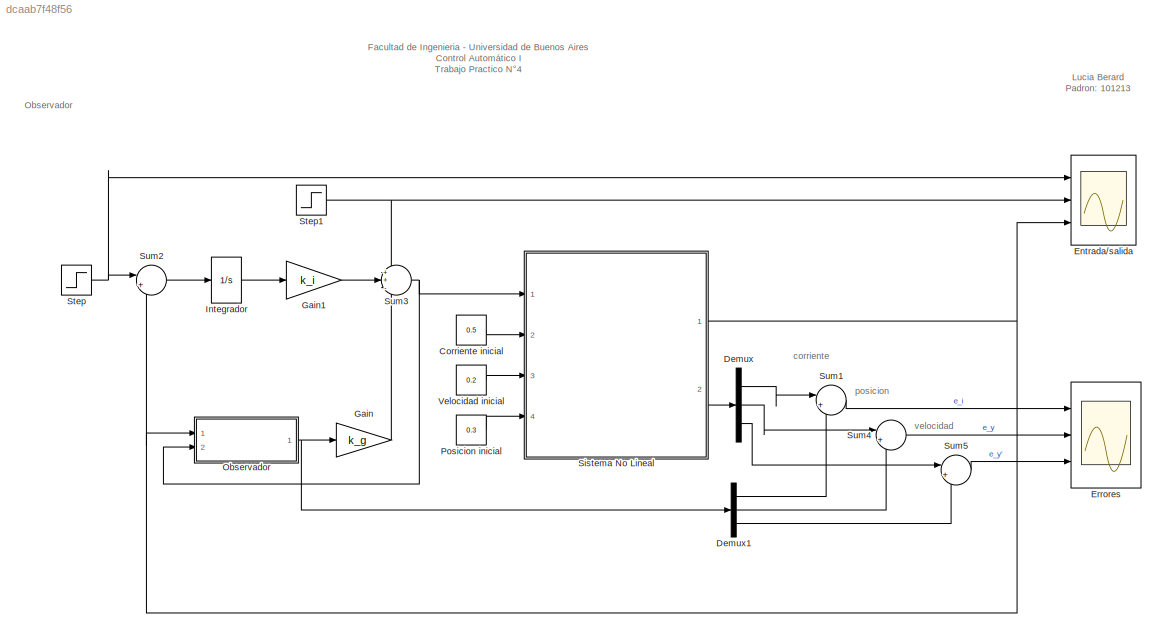
MODEL slx_dcaab7f48f56
KIND model
CONFIG AbsTol = auto
CONFIG EnableMultiTasking = off
CONFIG FixedStep = auto
CONFIG MaxStep = auto
CONFIG MinStep = auto
CONFIG RelTol = 1e-3
CONFIG SampleTimeConstraint = Unconstrained
CONFIG Solver = VariableStepAuto
CONFIG SolverName = VariableStepAuto
CONFIG StartTime = 0.0
CONFIG StopTime = 5
BLOCK [Constant] Corriente inicial
  Value = 0.5
BLOCK [Demux] Demux
  DisplayOption = bar
  Outputs = 3
  Ports = [1, 3]
BLOCK [Demux] Demux1
  DisplayOption = bar
  Outputs = 3
  Ports = [1, 3]
BLOCK [Scope] Entrada//salida
  Floating = off
  NumInputPorts = 3
  Ports = [3]
  ScopeSpecificationString = Simulink.scopes.TimeScopeBlockCfg('CurrentConfiguration', extmgr.ConfigurationSet(extmgr.Configuration('Core','General UI',true,'FigureColor',[0.831372549019608 0.815686274509804 0.784313725490196]),extmgr.Configuration('Core','Source UI',true),extmgr.Configuration('Sources','WiredSimulink',true),extmgr.Configuration('Visuals','Time Domain',true,'SerializedDisplays',{struct('MinYLimReal','-0.43197...<+1907ch>
BLOCK [Scope] Errores
  Floating = off
  NumInputPorts = 3
  Ports = [3]
  ScopeSpecificationString = Simulink.scopes.TimeScopeBlockCfg('CurrentConfiguration', extmgr.ConfigurationSet(extmgr.Configuration('Core','General UI',true,'FigureColor',[0.831372549019608 0.815686274509804 0.784313725490196]),extmgr.Configuration('Core','Source UI',true),extmgr.Configuration('Sources','WiredSimulink',true,'DataLoggingVariableName','ScopeData1'),extmgr.Configuration('Visuals','Time Domain',true,'SerializedDi...<+1949ch>
BLOCK [Gain] Gain
  Gain = k_g
  Multiplication = Matrix(K*u)
  OutDataTypeStr = Inherit: Inherit via internal rule
  ParamDataTypeStr = Inherit: Inherit via internal rule
  SaturateOnIntegerOverflow = off
BLOCK [Gain] Gain1
  Gain = k_i
  Multiplication = Matrix(K*u)
  OutDataTypeStr = Inherit: Inherit via internal rule
  ParamDataTypeStr = Inherit: Inherit via internal rule
  SaturateOnIntegerOverflow = off
BLOCK [Integrator] Integrador
  Ports = [1, 1]
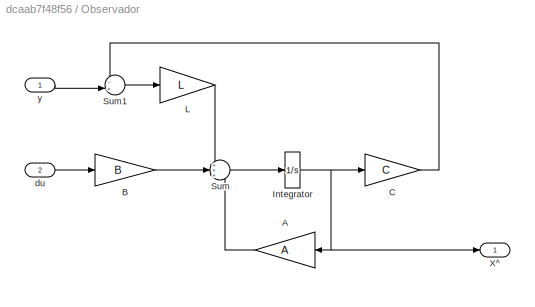
BLOCK [SubSystem] Observador
  Ports = [2, 1]
  RequestExecContextInheritance = off
BLOCK [Gain] Observador/A
  Gain = A
  Multiplication = Matrix(K*u)
  OutDataTypeStr = Inherit: Inherit via internal rule
  ParamDataTypeStr = Inherit: Inherit via internal rule
  SaturateOnIntegerOverflow = off
BLOCK [Gain] Observador/B
  Gain = B
  Multiplication = Matrix(K*u)
  OutDataTypeStr = Inherit: Inherit via internal rule
  ParamDataTypeStr = Inherit: Inherit via internal rule
  SaturateOnIntegerOverflow = off
BLOCK [Gain] Observador/C
  Gain = C
  Multiplication = Matrix(K*u)
  OutDataTypeStr = Inherit: Inherit via internal rule
  ParamDataTypeStr = Inherit: Inherit via internal rule
  SaturateOnIntegerOverflow = off
BLOCK [Integrator] Observador/Integrator
  Ports = [1, 1]
BLOCK [Gain] Observador/L
  Gain = L
  Multiplication = Matrix(K*u)
  OutDataTypeStr = Inherit: Inherit via internal rule
  ParamDataTypeStr = Inherit: Inherit via internal rule
  SaturateOnIntegerOverflow = off
BLOCK [Sum] Observador/Sum
  IconShape = round
  InputSameDT = off
  Inputs = +++
  OutDataTypeStr = Inherit: Inherit via internal rule
  Ports = [3, 1]
  SaturateOnIntegerOverflow = off
BLOCK [Sum] Observador/Sum1
  IconShape = round
  InputSameDT = off
  Inputs = -+|
  OutDataTypeStr = Inherit: Inherit via internal rule
  Ports = [2, 1]
  SaturateOnIntegerOverflow = off
BLOCK [Outport] Observador/X^
  IconDisplay = Port number
BLOCK [Inport] Observador/du
  IconDisplay = Port number
  Port = 2
BLOCK [Inport] Observador/y
  IconDisplay = Port number
BLOCK [Constant] Posicion inicial
  Value = 0.3
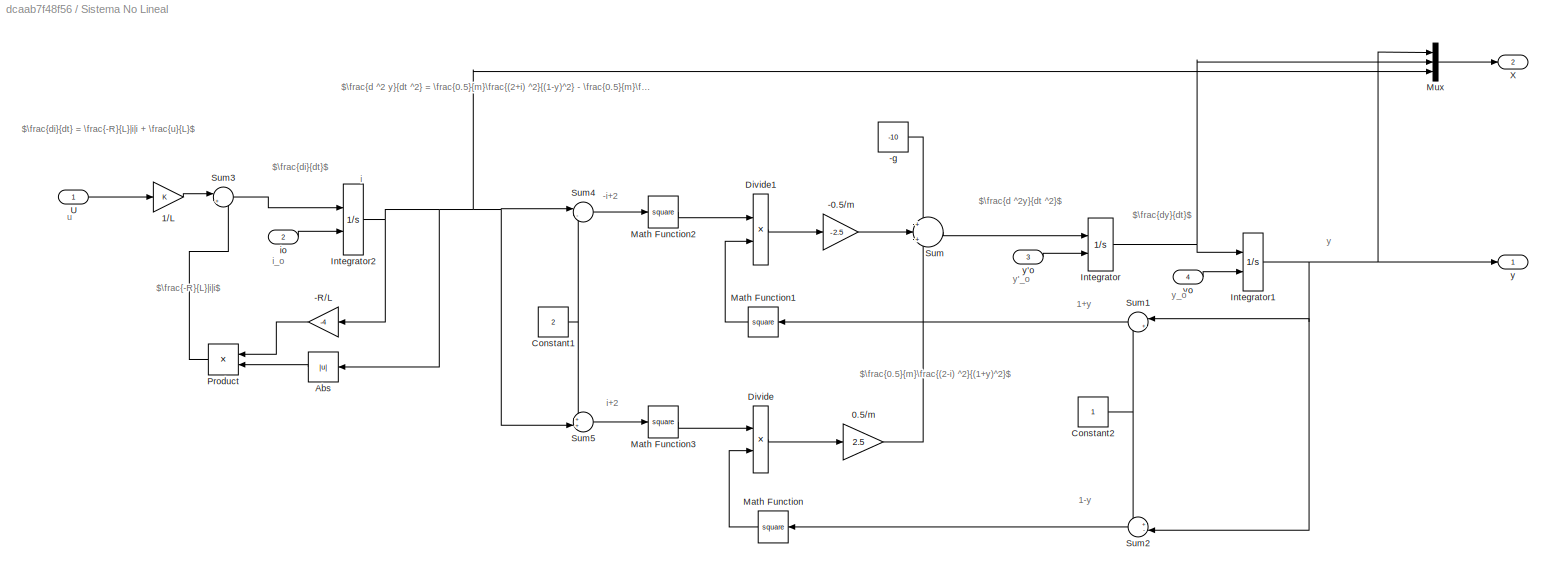
BLOCK [SubSystem] Sistema No Lineal
  Ports = [4, 2]
  RequestExecContextInheritance = off
BLOCK [Gain] Sistema No Lineal/-0.5//m
  Gain = -2.5
  OutDataTypeStr = Inherit: Inherit via internal rule
  ParamDataTypeStr = Inherit: Inherit via internal rule
  SaturateOnIntegerOverflow = off
BLOCK [Gain] Sistema No Lineal/-R//L
  Gain = -4
  OutDataTypeStr = Inherit: Inherit via internal rule
  ParamDataTypeStr = Inherit: Inherit via internal rule
  SaturateOnIntegerOverflow = off
BLOCK [Constant] Sistema No Lineal/-g
  Value = -10
BLOCK [Gain] Sistema No Lineal/0.5//m
  Gain = 2.5
  OutDataTypeStr = Inherit: Inherit via internal rule
  ParamDataTypeStr = Inherit: Inherit via internal rule
  SaturateOnIntegerOverflow = off
BLOCK [Gain] Sistema No Lineal/1//L
  OutDataTypeStr = Inherit: Inherit via internal rule
  ParamDataTypeStr = Inherit: Inherit via internal rule
  SaturateOnIntegerOverflow = off
BLOCK [Abs] Sistema No Lineal/Abs
  SaturateOnIntegerOverflow = off
BLOCK [Constant] Sistema No Lineal/Constant1
  Value = 2
BLOCK [Constant] Sistema No Lineal/Constant2
BLOCK [Product] Sistema No Lineal/Divide
  InputSameDT = off
  Inputs = */
  OutDataTypeStr = Inherit: Inherit via internal rule
  Ports = [2, 1]
  RndMeth = Floor
  SaturateOnIntegerOverflow = off
BLOCK [Product] Sistema No Lineal/Divide1
  InputSameDT = off
  Inputs = */
  OutDataTypeStr = Inherit: Inherit via internal rule
  Ports = [2, 1]
  RndMeth = Floor
  SaturateOnIntegerOverflow = off
BLOCK [Integrator] Sistema No Lineal/Integrator
  InitialConditionSource = external
  Ports = [2, 1]
BLOCK [Integrator] Sistema No Lineal/Integrator1
  InitialConditionSource = external
  LowerSaturationLimit = -1
  Ports = [2, 1]
  UpperSaturationLimit = 1
BLOCK [Integrator] Sistema No Lineal/Integrator2
  InitialConditionSource = external
  Ports = [2, 1]
BLOCK [Math] Sistema No Lineal/Math Function
  Operator = square
  Ports = [1, 1]
BLOCK [Math] Sistema No Lineal/Math Function1
  Operator = square
  Ports = [1, 1]
BLOCK [Math] Sistema No Lineal/Math Function2
  Operator = square
  Ports = [1, 1]
BLOCK [Math] Sistema No Lineal/Math Function3
  Operator = square
  Ports = [1, 1]
BLOCK [Mux] Sistema No Lineal/Mux
  DisplayOption = bar
  Inputs = 3
  Ports = [3, 1]
BLOCK [Product] Sistema No Lineal/Product
  InputSameDT = off
  OutDataTypeStr = Inherit: Inherit via internal rule
  Ports = [2, 1]
  RndMeth = Floor
  SaturateOnIntegerOverflow = off
BLOCK [Sum] Sistema No Lineal/Sum
  IconShape = round
  InputSameDT = off
  Inputs = +|+|+
  OutDataTypeStr = Inherit: Inherit via internal rule
  Ports = [3, 1]
  SaturateOnIntegerOverflow = off
BLOCK [Sum] Sistema No Lineal/Sum1
  IconShape = round
  InputSameDT = off
  Inputs = |++
  OutDataTypeStr = Inherit: Inherit via internal rule
  Ports = [2, 1]
  SaturateOnIntegerOverflow = off
BLOCK [Sum] Sistema No Lineal/Sum2
  IconShape = round
  InputSameDT = off
  Inputs = +-|
  OutDataTypeStr = Inherit: Inherit via internal rule
  Ports = [2, 1]
  SaturateOnIntegerOverflow = off
BLOCK [Sum] Sistema No Lineal/Sum3
  IconShape = round
  InputSameDT = off
  Inputs = |++
  OutDataTypeStr = Inherit: Inherit via internal rule
  Ports = [2, 1]
  SaturateOnIntegerOverflow = off
BLOCK [Sum] Sistema No Lineal/Sum4
  IconShape = round
  InputSameDT = off
  Inputs = |-+
  OutDataTypeStr = Inherit: Inherit via internal rule
  Ports = [2, 1]
  SaturateOnIntegerOverflow = off
BLOCK [Sum] Sistema No Lineal/Sum5
  IconShape = round
  InputSameDT = off
  Inputs = ++|
  OutDataTypeStr = Inherit: Inherit via internal rule
  Ports = [2, 1]
  SaturateOnIntegerOverflow = off
BLOCK [Inport] Sistema No Lineal/U
  IconDisplay = Signal name
  OutDataTypeStr = double
BLOCK [Outport] Sistema No Lineal/X
  IconDisplay = Port number
  Port = 2
BLOCK [Inport] Sistema No Lineal/io
  IconDisplay = Signal name
  OutDataTypeStr = double
  Port = 2
BLOCK [Outport] Sistema No Lineal/y 
  IconDisplay = Port number
BLOCK [Inport] Sistema No Lineal/y'o
  IconDisplay = Signal name
  Port = 3
BLOCK [Inport] Sistema No Lineal/yo
  IconDisplay = Signal name
  Port = 4
BLOCK [Step] Step
  After = 0.5
  SampleTime = 0
BLOCK [Step] Step1
  After = 0.55
  SampleTime = 0
  Time = 3
BLOCK [Sum] Sum1
  IconShape = round
  InputSameDT = off
  Inputs = |+-
  OutDataTypeStr = Inherit: Inherit via internal rule
  Ports = [2, 1]
  SaturateOnIntegerOverflow = off
BLOCK [Sum] Sum2
  IconShape = round
  InputSameDT = off
  Inputs = |+-
  OutDataTypeStr = Inherit: Inherit via internal rule
  Ports = [2, 1]
  SaturateOnIntegerOverflow = off
BLOCK [Sum] Sum3
  IconShape = round
  InputSameDT = off
  Inputs = ++-
  OutDataTypeStr = Inherit: Inherit via internal rule
  Ports = [3, 1]
  SaturateOnIntegerOverflow = off
BLOCK [Sum] Sum4
  IconShape = round
  InputSameDT = off
  Inputs = |+-
  OutDataTypeStr = Inherit: Inherit via internal rule
  Ports = [2, 1]
  SaturateOnIntegerOverflow = off
BLOCK [Sum] Sum5
  IconShape = round
  InputSameDT = off
  Inputs = |+-
  OutDataTypeStr = Inherit: Inherit via internal rule
  Ports = [2, 1]
  SaturateOnIntegerOverflow = off
BLOCK [Constant] Velocidad inicial
  Value = 0.2
ANNOTATION (root): Facultad de Ingenieria - Universidad de Buenos Aires Control Automático I Trabajo Practico N°4
ANNOTATION (root): Lucia Berard Padron: 101213
ANNOTATION (root): Observador
ANNOTATION (root): corriente
ANNOTATION (root): posicion
ANNOTATION (root): velocidad
ANNOTATION Sistema No Lineal: -i+2
ANNOTATION Sistema No Lineal: 1+y
ANNOTATION Sistema No Lineal: 1-y
ANNOTATION Sistema No Lineal: $\frac{-R}{L}|i|i$
ANNOTATION Sistema No Lineal: $\frac{0.5}{m}\frac{(2-i) ^2}{(1+y)^2}$
ANNOTATION Sistema No Lineal: $\frac{d ^2 y}{dt ^2} = \frac{0.5}{m}\frac{(2+i) ^2}{(1-y)^2} - \frac{0.5}{m}\frac{(2-i) ^2}{(1+y)^2} -g$
ANNOTATION Sistema No Lineal: $\frac{d ^2y}{dt ^2}$
ANNOTATION Sistema No Lineal: $\frac{di}{dt} = \frac{-R}{L}|i|i + \frac{u}{L}$
ANNOTATION Sistema No Lineal: $\frac{di}{dt}$
ANNOTATION Sistema No Lineal: $\frac{dy}{dt}$
ANNOTATION Sistema No Lineal: i
ANNOTATION Sistema No Lineal: i+2
ANNOTATION Sistema No Lineal: i_o
ANNOTATION Sistema No Lineal: u
ANNOTATION Sistema No Lineal: y
ANNOTATION Sistema No Lineal: y'_o
ANNOTATION Sistema No Lineal: y_o
LINE Corriente inicial:1 -> Sistema No Lineal:2
LINE Demux1:1 -> Sum1:2
LINE Demux1:2 -> Sum4:2
LINE Demux1:3 -> Sum5:2
LINE Demux:1 -> Sum1:1
LINE Demux:2 -> Sum4:1
LINE Demux:3 -> Sum5:1
LINE Gain1:1 -> Sum3:2
LINE Gain:1 -> Sum3:3
LINE Integrador:1 -> Gain1:1
LINE Observador/A:1 -> Observador/Sum:3
LINE Observador/B:1 -> Observador/Sum:2
LINE Observador/C:1 -> Observador/Sum1:1
NET Observador/Integrator:1 -> Observador/A:1, Observador/C:1, Observador/X^:1
LINE Observador/L:1 -> Observador/Sum:1
LINE Observador/Sum1:1 -> Observador/L:1
LINE Observador/Sum:1 -> Observador/Integrator:1
LINE Observador/du:1 -> Observador/B:1
LINE Observador/y:1 -> Observador/Sum1:2
NET Observador:1 -> Demux1:1, Gain:1
LINE Posicion inicial:1 -> Sistema No Lineal:4
LINE Sistema No Lineal/-0.5//m:1 -> Sistema No Lineal/Sum:2
LINE Sistema No Lineal/-R//L:1 -> Sistema No Lineal/Product:1
LINE Sistema No Lineal/-g:1 -> Sistema No Lineal/Sum:1
LINE Sistema No Lineal/0.5//m:1 -> Sistema No Lineal/Sum:3
LINE Sistema No Lineal/1//L:1 -> Sistema No Lineal/Sum3:1
LINE Sistema No Lineal/Abs:1 -> Sistema No Lineal/Product:2
NET Sistema No Lineal/Constant1:1 -> Sistema No Lineal/Sum4:2, Sistema No Lineal/Sum5:1
NET Sistema No Lineal/Constant2:1 -> Sistema No Lineal/Sum1:2, Sistema No Lineal/Sum2:1
LINE Sistema No Lineal/Divide1:1 -> Sistema No Lineal/-0.5//m:1
LINE Sistema No Lineal/Divide:1 -> Sistema No Lineal/0.5//m:1
NET Sistema No Lineal/Integrator1:1 -> Sistema No Lineal/Mux:1, Sistema No Lineal/Sum1:1, Sistema No Lineal/Sum2:2, Sistema No Lineal/y :1
NET Sistema No Lineal/Integrator2:1 -> Sistema No Lineal/-R//L:1, Sistema No Lineal/Abs:1, Sistema No Lineal/Mux:3, Sistema No Lineal/Sum4:1, Sistema No Lineal/Sum5:2
NET Sistema No Lineal/Integrator:1 -> Sistema No Lineal/Integrator1:1, Sistema No Lineal/Mux:2
LINE Sistema No Lineal/Math Function1:1 -> Sistema No Lineal/Divide1:2
LINE Sistema No Lineal/Math Function2:1 -> Sistema No Lineal/Divide1:1
LINE Sistema No Lineal/Math Function3:1 -> Sistema No Lineal/Divide:1
LINE Sistema No Lineal/Math Function:1 -> Sistema No Lineal/Divide:2
LINE Sistema No Lineal/Mux:1 -> Sistema No Lineal/X:1
LINE Sistema No Lineal/Product:1 -> Sistema No Lineal/Sum3:2
LINE Sistema No Lineal/Sum1:1 -> Sistema No Lineal/Math Function1:1
LINE Sistema No Lineal/Sum2:1 -> Sistema No Lineal/Math Function:1
LINE Sistema No Lineal/Sum3:1 -> Sistema No Lineal/Integrator2:1
LINE Sistema No Lineal/Sum4:1 -> Sistema No Lineal/Math Function2:1
LINE Sistema No Lineal/Sum5:1 -> Sistema No Lineal/Math Function3:1
LINE Sistema No Lineal/Sum:1 -> Sistema No Lineal/Integrator:1
LINE Sistema No Lineal/U:1 -> Sistema No Lineal/1//L:1
LINE Sistema No Lineal/io:1 -> Sistema No Lineal/Integrator2:2
LINE Sistema No Lineal/y'o:1 -> Sistema No Lineal/Integrator:2
LINE Sistema No Lineal/yo:1 -> Sistema No Lineal/Integrator1:2
NET Sistema No Lineal:1 -> Entrada//salida:3, Observador:1, Sum2:2
LINE Sistema No Lineal:2 -> Demux:1
NET Step1:1 -> Entrada//salida:2, Sum3:1
NET Step:1 -> Entrada//salida:1, Sum2:1
LINE Sum1:1 -> Errores:1
LINE Sum2:1 -> Integrador:1
NET Sum3:1 -> Observador:2, Sistema No Lineal:1
LINE Sum4:1 -> Errores:2
LINE Sum5:1 -> Errores:3
LINE Velocidad inicial:1 -> Sistema No Lineal:3
note: NET lines group one-source signal fan-out (src -> all destinations, sorted); 1:1 wires keep LINE
